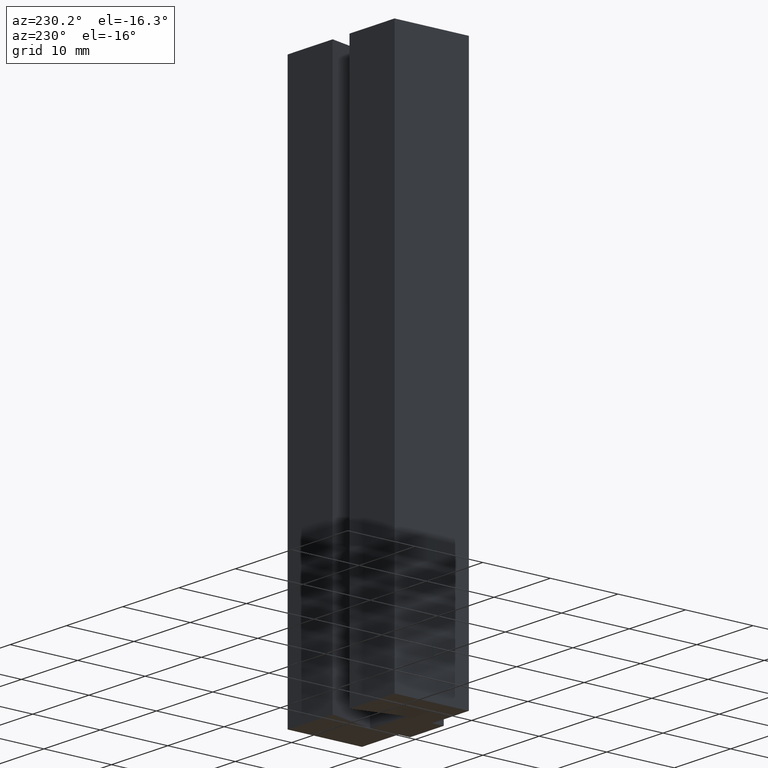
[diagram: clean part render]
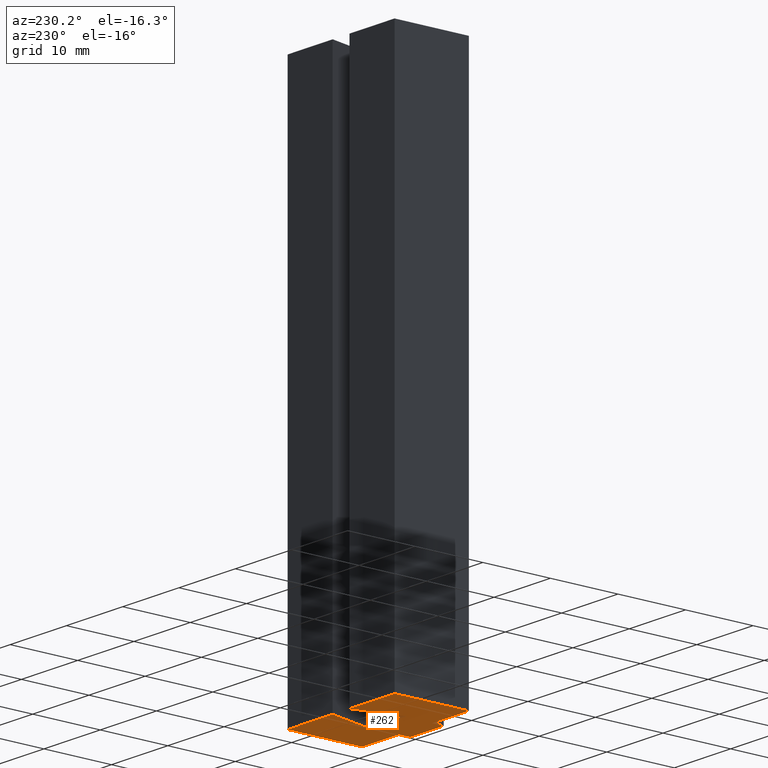
[diagram: same view with one face highlighted and labeled with its STEP entity id]
A machine part, auxiliary view. The second image highlights one B-rep face of the part: STEP entity #262.
In plain terms, the highlighted planar face has unit normal (0, 0, 1).
Its self-contained STEP definition (entity closure, byte-faithful):
#16=FACE_OUTER_BOUND('',#30,.T.);
#30=EDGE_LOOP('',(#176,#177,#178,#179,#180,#181,#182,#183,#184,#185,#186,
#187));
#44=LINE('',#383,#80);
#45=LINE('',#385,#81);
#46=LINE('',#387,#82);
#47=LINE('',#389,#83);
#48=LINE('',#391,#84);
#49=LINE('',#393,#85);
#50=LINE('',#395,#86);
#51=LINE('',#397,#87);
#52=LINE('',#399,#88);
#53=LINE('',#401,#89);
#54=LINE('',#403,#90);
#55=LINE('',#404,#91);
#80=VECTOR('',#317,10.);
#81=VECTOR('',#318,10.);
#82=VECTOR('',#319,10.);
#83=VECTOR('',#320,10.);
#84=VECTOR('',#321,10.);
#85=VECTOR('',#322,10.);
#86=VECTOR('',#323,10.);
#87=VECTOR('',#324,10.);
#88=VECTOR('',#325,10.);
#89=VECTOR('',#326,10.);
#90=VECTOR('',#327,10.);
#91=VECTOR('',#328,10.);
#116=VERTEX_POINT('',#381);
#117=VERTEX_POINT('',#382);
#118=VERTEX_POINT('',#384);
#119=VERTEX_POINT('',#386);
#120=VERTEX_POINT('',#388);
#121=VERTEX_POINT('',#390);
#122=VERTEX_POINT('',#392);
#123=VERTEX_POINT('',#394);
#124=VERTEX_POINT('',#396);
#125=VERTEX_POINT('',#398);
#126=VERTEX_POINT('',#400);
#127=VERTEX_POINT('',#402);
#140=EDGE_CURVE('',#116,#117,#44,.T.);
#141=EDGE_CURVE('',#118,#116,#45,.T.);
#142=EDGE_CURVE('',#119,#118,#46,.T.);
#143=EDGE_CURVE('',#120,#119,#47,.T.);
#144=EDGE_CURVE('',#121,#120,#48,.T.);
#145=EDGE_CURVE('',#122,#121,#49,.T.);
#146=EDGE_CURVE('',#123,#122,#50,.T.);
#147=EDGE_CURVE('',#124,#123,#51,.T.);
#148=EDGE_CURVE('',#125,#124,#52,.T.);
#149=EDGE_CURVE('',#126,#125,#53,.T.);
#150=EDGE_CURVE('',#127,#126,#54,.T.);
#151=EDGE_CURVE('',#117,#127,#55,.T.);
#176=ORIENTED_EDGE('',*,*,#140,.F.);
#177=ORIENTED_EDGE('',*,*,#141,.F.);
#178=ORIENTED_EDGE('',*,*,#142,.F.);
#179=ORIENTED_EDGE('',*,*,#143,.F.);
#180=ORIENTED_EDGE('',*,*,#144,.F.);
#181=ORIENTED_EDGE('',*,*,#145,.F.);
#182=ORIENTED_EDGE('',*,*,#146,.F.);
#183=ORIENTED_EDGE('',*,*,#147,.F.);
#184=ORIENTED_EDGE('',*,*,#148,.F.);
#185=ORIENTED_EDGE('',*,*,#149,.F.);
#186=ORIENTED_EDGE('',*,*,#150,.F.);
#187=ORIENTED_EDGE('',*,*,#151,.F.);
#248=PLANE('',#299);
#262=ADVANCED_FACE('',(#16),#248,.F.);
#299=AXIS2_PLACEMENT_3D('',#380,#315,#316);
#315=DIRECTION('center_axis',(0.,0.,1.));
#316=DIRECTION('ref_axis',(1.,0.,0.));
#317=DIRECTION('',(0.,1.,0.));
#318=DIRECTION('',(1.,-5.11511478940699E-16,0.));
#319=DIRECTION('',(1.30614473485312E-15,1.,0.));
#320=DIRECTION('',(1.,0.,0.));
#321=DIRECTION('',(1.30614473485312E-15,-1.,0.));
#322=DIRECTION('',(1.,5.11511478940699E-16,0.));
#323=DIRECTION('',(0.,-1.,0.));
#324=DIRECTION('',(-1.,-2.77555756156289E-16,0.));
#325=DIRECTION('',(0.242535625036333,0.970142500145332,0.));
#326=DIRECTION('',(-1.,0.,0.));
#327=DIRECTION('',(0.242535625036333,-0.970142500145332,0.));
#328=DIRECTION('',(-1.,2.77555756156289E-16,0.));
#380=CARTESIAN_POINT('Origin',(0.,5.14124002691705,-40.));
#381=CARTESIAN_POINT('',(9.50000000000001,0.,-40.));
#382=CARTESIAN_POINT('',(9.50000000000001,11.,-40.));
#383=CARTESIAN_POINT('',(9.50000000000001,11.,-40.));
#384=CARTESIAN_POINT('',(3.,3.32482461311454E-15,-40.));
#385=CARTESIAN_POINT('',(9.50000000000001,0.,-40.));
#386=CARTESIAN_POINT('',(3.,-1.7,-40.));
#387=CARTESIAN_POINT('',(3.,3.32482461311454E-15,-40.));
#388=CARTESIAN_POINT('',(-3.,-1.7,-40.));
#389=CARTESIAN_POINT('',(3.,-1.7,-40.));
#390=CARTESIAN_POINT('',(-3.,3.32482461311454E-15,-40.));
#391=CARTESIAN_POINT('',(-3.,-1.7,-40.));
#392=CARTESIAN_POINT('',(-9.50000000000001,0.,-40.));
#393=CARTESIAN_POINT('',(-3.,3.32482461311454E-15,-40.));
#394=CARTESIAN_POINT('',(-9.50000000000001,11.,-40.));
#395=CARTESIAN_POINT('',(-9.50000000000001,0.,-40.));
#396=CARTESIAN_POINT('',(-1.5,11.,-40.));
#397=CARTESIAN_POINT('',(-9.50000000000001,11.,-40.));
#398=CARTESIAN_POINT('',(-3.25,4.,-40.));
#399=CARTESIAN_POINT('',(-1.5,11.,-40.));
#400=CARTESIAN_POINT('',(3.25,4.,-40.));
#401=CARTESIAN_POINT('',(-3.25,4.,-40.));
#402=CARTESIAN_POINT('',(1.5,11.,-40.));
#403=CARTESIAN_POINT('',(3.25,4.,-40.));
#404=CARTESIAN_POINT('',(1.5,11.,-40.));